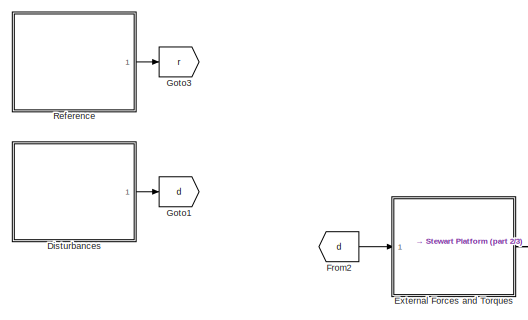
[diagram: root canvas - part 1/3, top center region]
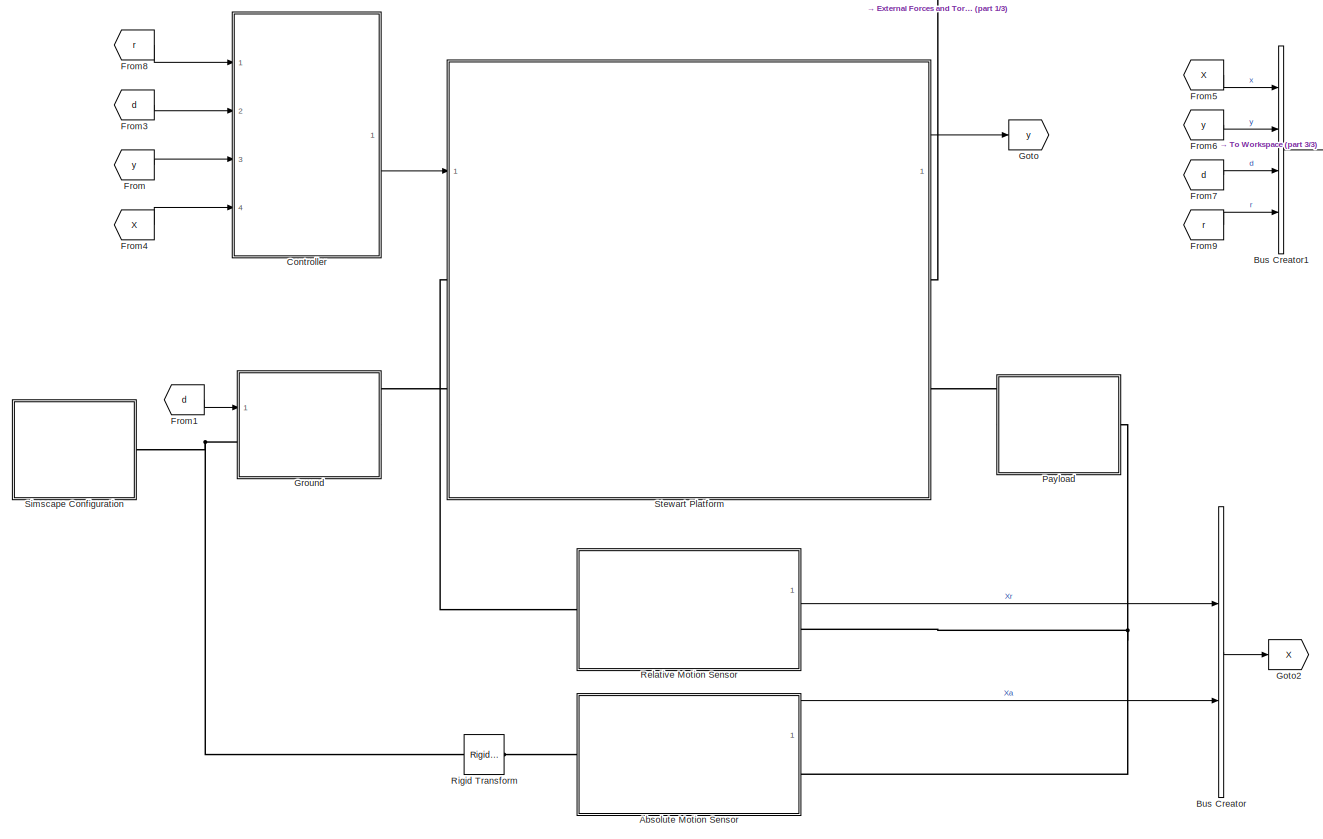
[diagram: root canvas - part 2/3, full width, middle band]
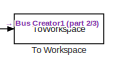
[diagram: root canvas - part 3/3, middle right region]
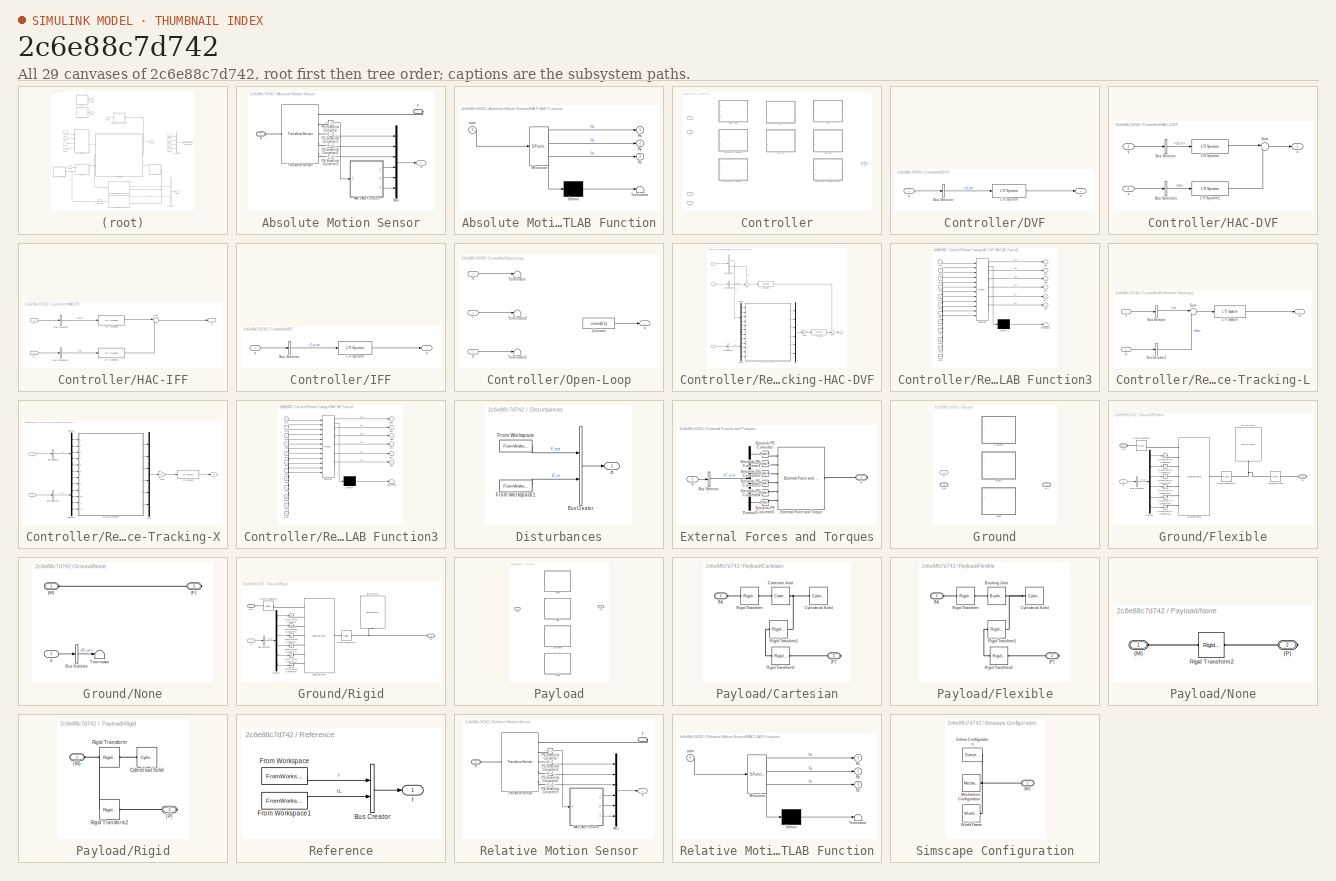
[diagram: thumbnail index - all 29 canvases of the model, root first then tree order]
MODEL slx_2c6e88c7d742
KIND model
CONFIG AbsTol = 1e-4
CONFIG EnableMultiTasking = off
CONFIG FixedStep = 1e-4
CONFIG MaxStep = 0.2
CONFIG MinStep = auto
CONFIG RelTol = 1e-4
CONFIG SampleTimeConstraint = Unconstrained
CONFIG Solver = ode45
CONFIG SolverName = ode45
CONFIG StartTime = 0.0
CONFIG StopTime = 0.1
BLOCK [SubSystem] Absolute Motion Sensor
  Ports = [0, 1, 0, 0, 0, 1, 1]
  RequestExecContextInheritance = off
BLOCK [PMIOPort] Absolute Motion Sensor/B
  Port = 2
  Side = Left
BLOCK [PMIOPort] Absolute Motion Sensor/F
  Side = Right
BLOCK [SubSystem] Absolute Motion Sensor/MATLAB Function
  ErrorFcn = Stateflow.Translate.translate
  PermitHierarchicalResolution = ExplicitOnly
  Ports = [1, 3]
  RequestExecContextInheritance = off
  SFBlockType = MATLAB Function
  TreatAsAtomicUnit = on
BLOCK [Demux] Absolute Motion Sensor/MATLAB Function/ Demux 
  Outputs = 1
  Ports = [1, 1]
BLOCK [S-Function] Absolute Motion Sensor/MATLAB Function/ SFunction 
  EnableBusSupport = on
  FunctionName = sf_sfun
  PortCounts = [1 4]
  Ports = [1, 4]
  SFcnIsStateOwnerBlock = off
  SFunctionDeploymentMode = off
  Tag = Stateflow S-Function 1
BLOCK [Terminator] Absolute Motion Sensor/MATLAB Function/ Terminator 
BLOCK [Outport] Absolute Motion Sensor/MATLAB Function/Rx
BLOCK [Outport] Absolute Motion Sensor/MATLAB Function/Ry
  Port = 2
BLOCK [Outport] Absolute Motion Sensor/MATLAB Function/Rz
  Port = 3
BLOCK [Inport] Absolute Motion Sensor/MATLAB Function/rotm
BLOCK [Mux] Absolute Motion Sensor/Mux
  DisplayOption = bar
  Inputs = 6
  Ports = [6, 1]
BLOCK [Reference] Absolute Motion Sensor/PS-Simulink Converter  REF=nesl_utility/PS-Simulink
Converter
  Ports = [0, 1, 0, 0, 0, 1]
  SourceBlock = nesl_utility/PS-Simulink\nConverter
  SourceProductBaseCode = SS
  SourceType = PS-Simulink\nConverter
BLOCK [Reference] Absolute Motion Sensor/PS-Simulink Converter1  REF=nesl_utility/PS-Simulink
Converter
  Ports = [0, 1, 0, 0, 0, 1]
  SourceBlock = nesl_utility/PS-Simulink\nConverter
  SourceProductBaseCode = SS
  SourceType = PS-Simulink\nConverter
BLOCK [Reference] Absolute Motion Sensor/PS-Simulink Converter2  REF=nesl_utility/PS-Simulink
Converter
  Ports = [0, 1, 0, 0, 0, 1]
  SourceBlock = nesl_utility/PS-Simulink\nConverter
  SourceProductBaseCode = SS
  SourceType = PS-Simulink\nConverter
BLOCK [Reference] Absolute Motion Sensor/PS-Simulink Converter3  REF=nesl_utility/PS-Simulink
Converter
  Ports = [0, 1, 0, 0, 0, 1]
  SourceBlock = nesl_utility/PS-Simulink\nConverter
  SourceProductBaseCode = SS
  SourceType = PS-Simulink\nConverter
BLOCK [Reference] Absolute Motion Sensor/Transform Sensor  REF=sm_lib/Frames and
Transforms/Transform
Sensor
  Ports = [0, 0, 0, 0, 0, 1, 5]
  SourceBlock = sm_lib/Frames and\nTransforms/Transform\nSensor
  SourceProductBaseCode = MS
  SourceType = Transform\nSensor
BLOCK [Outport] Absolute Motion Sensor/X
BLOCK [BusCreator] Bus Creator
  DisplayOption = bar
  InheritFromInputs = on
  Inputs = 2
  Ports = [2, 1]
BLOCK [BusCreator] Bus Creator1
  DisplayOption = bar
  InheritFromInputs = on
  Inputs = 4
  Ports = [4, 1]
BLOCK [SubSystem] Controller
  Ports = [4, 1]
  RequestExecContextInheritance = off
  Variant = on
  VariantControl = Variant1
BLOCK [SubSystem] Controller/DVF
  Ports = [1, 1]
  RequestExecContextInheritance = off
  VariantControl = controller.type == 2
BLOCK [BusSelector] Controller/DVF/Bus Selector
  OutputSignals = dLm
  Ports = [1, 1]
BLOCK [Reference] Controller/DVF/LTI System  REF=cstblocks/LTI System
  Ports = [1, 1]
  SourceBlock = cstblocks/LTI System
  SourceProductBaseCode = CT
  SourceType = LTI Block
BLOCK [Outport] Controller/DVF/u
BLOCK [Inport] Controller/DVF/y
BLOCK [SubSystem] Controller/HAC-DVF
  Ports = [2, 1]
  RequestExecContextInheritance = off
  VariantControl = controller.type == 4
BLOCK [BusSelector] Controller/HAC-DVF/Bus Selector
  OutputSignals = dLm
  Ports = [1, 1]
BLOCK [BusSelector] Controller/HAC-DVF/Bus Selector1
  OutputSignals = Xa
  Ports = [1, 1]
BLOCK [Reference] Controller/HAC-DVF/LTI System  REF=cstblocks/LTI System
  Ports = [1, 1]
  SourceBlock = cstblocks/LTI System
  SourceProductBaseCode = CT
  SourceType = LTI Block
BLOCK [Reference] Controller/HAC-DVF/LTI System1  REF=cstblocks/LTI System
  Ports = [1, 1]
  SourceBlock = cstblocks/LTI System
  SourceProductBaseCode = CT
  SourceType = LTI Block
BLOCK [Sum] Controller/HAC-DVF/Sum
  Inputs = |+-
  Ports = [2, 1]
BLOCK [Outport] Controller/HAC-DVF/u
BLOCK [Inport] Controller/HAC-DVF/x
  Port = 2
BLOCK [Inport] Controller/HAC-DVF/y
BLOCK [SubSystem] Controller/HAC-IFF
  Ports = [2, 1]
  RequestExecContextInheritance = off
  VariantControl = controller.type == 3
BLOCK [BusSelector] Controller/HAC-IFF/Bus Selector
  OutputSignals = Taum
  Ports = [1, 1]
BLOCK [BusSelector] Controller/HAC-IFF/Bus Selector1
  OutputSignals = Xa
  Ports = [1, 1]
BLOCK [Reference] Controller/HAC-IFF/LTI System  REF=cstblocks/LTI System
  Ports = [1, 1]
  SourceBlock = cstblocks/LTI System
  SourceProductBaseCode = CT
  SourceType = LTI Block
BLOCK [Reference] Controller/HAC-IFF/LTI System1  REF=cstblocks/LTI System
  Ports = [1, 1]
  SourceBlock = cstblocks/LTI System
  SourceProductBaseCode = CT
  SourceType = LTI Block
BLOCK [Sum] Controller/HAC-IFF/Sum
  Inputs = |+-
  Ports = [2, 1]
BLOCK [Outport] Controller/HAC-IFF/u
BLOCK [Inport] Controller/HAC-IFF/x
  Port = 2
BLOCK [Inport] Controller/HAC-IFF/y
BLOCK [SubSystem] Controller/IFF
  Ports = [1, 1]
  RequestExecContextInheritance = off
  VariantControl = controller.type == 1
BLOCK [BusSelector] Controller/IFF/Bus Selector
  OutputSignals = Taum
  Ports = [1, 1]
BLOCK [Reference] Controller/IFF/LTI System  REF=cstblocks/LTI System
  Ports = [1, 1]
  SourceBlock = cstblocks/LTI System
  SourceProductBaseCode = CT
  SourceType = LTI Block
BLOCK [Outport] Controller/IFF/u
BLOCK [Inport] Controller/IFF/y
BLOCK [SubSystem] Controller/Open-Loop
  Ports = [3, 1]
  RequestExecContextInheritance = off
  VariantControl = controller.type == 0
BLOCK [Constant] Controller/Open-Loop/Constant
  Value = zeros(6,1)
BLOCK [Terminator] Controller/Open-Loop/Terminator
BLOCK [Terminator] Controller/Open-Loop/Terminator1
BLOCK [Terminator] Controller/Open-Loop/Terminator2
BLOCK [Inport] Controller/Open-Loop/d
BLOCK [Inport] Controller/Open-Loop/r
  Port = 3
BLOCK [Outport] Controller/Open-Loop/u
BLOCK [Inport] Controller/Open-Loop/y
  Port = 2
BLOCK [SubSystem] Controller/Reference-Tracking-HAC-DVF
  Ports = [3, 1]
  RequestExecContextInheritance = off
  VariantControl = controller.type == 7
BLOCK [BusSelector] Controller/Reference-Tracking-HAC-DVF/Bus Selector
  OutputSignals = r,rL
  Ports = [1, 2]
BLOCK [BusSelector] Controller/Reference-Tracking-HAC-DVF/Bus Selector1
  OutputSignals = Xr
  Ports = [1, 1]
BLOCK [BusSelector] Controller/Reference-Tracking-HAC-DVF/Bus Selector2
  OutputSignals = dLm
  Ports = [1, 1]
BLOCK [Demux] Controller/Reference-Tracking-HAC-DVF/Demux
  Outputs = 6
  Ports = [1, 6]
BLOCK [Demux] Controller/Reference-Tracking-HAC-DVF/Demux1
  Outputs = 6
  Ports = [1, 6]
BLOCK [Gain] Controller/Reference-Tracking-HAC-DVF/Gain
BLOCK [Reference] Controller/Reference-Tracking-HAC-DVF/LTI System  REF=cstblocks/LTI System
  Ports = [1, 1]
  SourceBlock = cstblocks/LTI System
  SourceProductBaseCode = CT
  SourceType = LTI Block
BLOCK [Reference] Controller/Reference-Tracking-HAC-DVF/LTI System1  REF=cstblocks/LTI System
  Ports = [1, 1]
  SourceBlock = cstblocks/LTI System
  SourceProductBaseCode = CT
  SourceType = LTI Block
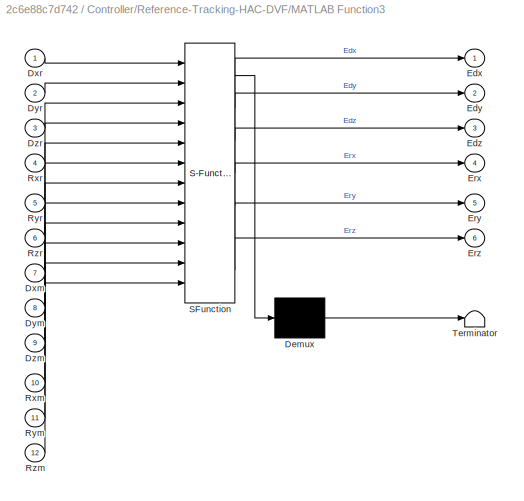
BLOCK [SubSystem] Controller/Reference-Tracking-HAC-DVF/MATLAB Function3
  ErrorFcn = Stateflow.Translate.translate
  PermitHierarchicalResolution = ExplicitOnly
  Ports = [12, 6]
  RequestExecContextInheritance = off
  SFBlockType = MATLAB Function
  TreatAsAtomicUnit = on
BLOCK [Demux] Controller/Reference-Tracking-HAC-DVF/MATLAB Function3/ Demux 
  Outputs = 1
  Ports = [1, 1]
BLOCK [S-Function] Controller/Reference-Tracking-HAC-DVF/MATLAB Function3/ SFunction 
  EnableBusSupport = on
  FunctionName = sf_sfun
  PortCounts = [12 7]
  Ports = [12, 7]
  SFcnIsStateOwnerBlock = off
  SFunctionDeploymentMode = off
  Tag = Stateflow S-Function 4
BLOCK [Terminator] Controller/Reference-Tracking-HAC-DVF/MATLAB Function3/ Terminator 
BLOCK [Inport] Controller/Reference-Tracking-HAC-DVF/MATLAB Function3/Dxm
  Port = 7
BLOCK [Inport] Controller/Reference-Tracking-HAC-DVF/MATLAB Function3/Dxr
BLOCK [Inport] Controller/Reference-Tracking-HAC-DVF/MATLAB Function3/Dym
  Port = 8
BLOCK [Inport] Controller/Reference-Tracking-HAC-DVF/MATLAB Function3/Dyr
  Port = 2
BLOCK [Inport] Controller/Reference-Tracking-HAC-DVF/MATLAB Function3/Dzm
  Port = 9
BLOCK [Inport] Controller/Reference-Tracking-HAC-DVF/MATLAB Function3/Dzr
  Port = 3
BLOCK [Outport] Controller/Reference-Tracking-HAC-DVF/MATLAB Function3/Edx
BLOCK [Outport] Controller/Reference-Tracking-HAC-DVF/MATLAB Function3/Edy
  Port = 2
BLOCK [Outport] Controller/Reference-Tracking-HAC-DVF/MATLAB Function3/Edz
  Port = 3
BLOCK [Outport] Controller/Reference-Tracking-HAC-DVF/MATLAB Function3/Erx
  Port = 4
BLOCK [Outport] Controller/Reference-Tracking-HAC-DVF/MATLAB Function3/Ery
  Port = 5
BLOCK [Outport] Controller/Reference-Tracking-HAC-DVF/MATLAB Function3/Erz
  Port = 6
BLOCK [Inport] Controller/Reference-Tracking-HAC-DVF/MATLAB Function3/Rxm
  Port = 10
BLOCK [Inport] Controller/Reference-Tracking-HAC-DVF/MATLAB Function3/Rxr
  Port = 4
BLOCK [Inport] Controller/Reference-Tracking-HAC-DVF/MATLAB Function3/Rym
  Port = 11
BLOCK [Inport] Controller/Reference-Tracking-HAC-DVF/MATLAB Function3/Ryr
  Port = 5
BLOCK [Inport] Controller/Reference-Tracking-HAC-DVF/MATLAB Function3/Rzm
  Port = 12
BLOCK [Inport] Controller/Reference-Tracking-HAC-DVF/MATLAB Function3/Rzr
  Port = 6
BLOCK [Mux] Controller/Reference-Tracking-HAC-DVF/Mux
  DisplayOption = bar
  Inputs = 6
  Ports = [6, 1]
BLOCK [Sum] Controller/Reference-Tracking-HAC-DVF/Sum
  Inputs = +-|
  Ports = [2, 1]
BLOCK [Sum] Controller/Reference-Tracking-HAC-DVF/Sum1
  Inputs = ++|
  Ports = [2, 1]
BLOCK [Inport] Controller/Reference-Tracking-HAC-DVF/r
  Port = 2
BLOCK [Outport] Controller/Reference-Tracking-HAC-DVF/u
BLOCK [Inport] Controller/Reference-Tracking-HAC-DVF/x
BLOCK [Inport] Controller/Reference-Tracking-HAC-DVF/y
  Port = 3
BLOCK [SubSystem] Controller/Reference-Tracking-L
  Ports = [2, 1]
  RequestExecContextInheritance = off
  VariantControl = controller.type == 5
BLOCK [BusSelector] Controller/Reference-Tracking-L/Bus Selector
  OutputSignals = rL
  Ports = [1, 1]
BLOCK [BusSelector] Controller/Reference-Tracking-L/Bus Selector1
  OutputSignals = dLm
  Ports = [1, 1]
BLOCK [Reference] Controller/Reference-Tracking-L/LTI System  REF=cstblocks/LTI System
  Ports = [1, 1]
  SourceBlock = cstblocks/LTI System
  SourceProductBaseCode = CT
  SourceType = LTI Block
BLOCK [Sum] Controller/Reference-Tracking-L/Sum
  Inputs = |+-
  Ports = [2, 1]
BLOCK [Inport] Controller/Reference-Tracking-L/r
  Port = 2
BLOCK [Outport] Controller/Reference-Tracking-L/u
BLOCK [Inport] Controller/Reference-Tracking-L/y
BLOCK [SubSystem] Controller/Reference-Tracking-X
  Ports = [2, 1]
  RequestExecContextInheritance = off
  VariantControl = controller.type == 6
BLOCK [BusSelector] Controller/Reference-Tracking-X/Bus Selector
  OutputSignals = r
  Ports = [1, 1]
BLOCK [BusSelector] Controller/Reference-Tracking-X/Bus Selector1
  OutputSignals = Xr
  Ports = [1, 1]
BLOCK [Demux] Controller/Reference-Tracking-X/Demux
  Outputs = 6
  Ports = [1, 6]
BLOCK [Demux] Controller/Reference-Tracking-X/Demux1
  Outputs = 6
  Ports = [1, 6]
BLOCK [Gain] Controller/Reference-Tracking-X/Gain
BLOCK [Reference] Controller/Reference-Tracking-X/LTI System  REF=cstblocks/LTI System
  Ports = [1, 1]
  SourceBlock = cstblocks/LTI System
  SourceProductBaseCode = CT
  SourceType = LTI Block
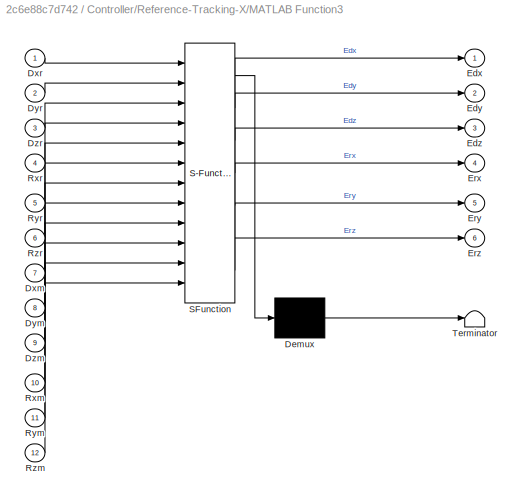
BLOCK [SubSystem] Controller/Reference-Tracking-X/MATLAB Function3
  ErrorFcn = Stateflow.Translate.translate
  PermitHierarchicalResolution = ExplicitOnly
  Ports = [12, 6]
  RequestExecContextInheritance = off
  SFBlockType = MATLAB Function
  TreatAsAtomicUnit = on
BLOCK [Demux] Controller/Reference-Tracking-X/MATLAB Function3/ Demux 
  Outputs = 1
  Ports = [1, 1]
BLOCK [S-Function] Controller/Reference-Tracking-X/MATLAB Function3/ SFunction 
  EnableBusSupport = on
  FunctionName = sf_sfun
  PortCounts = [12 7]
  Ports = [12, 7]
  SFcnIsStateOwnerBlock = off
  SFunctionDeploymentMode = off
  Tag = Stateflow S-Function 3
BLOCK [Terminator] Controller/Reference-Tracking-X/MATLAB Function3/ Terminator 
BLOCK [Inport] Controller/Reference-Tracking-X/MATLAB Function3/Dxm
  Port = 7
BLOCK [Inport] Controller/Reference-Tracking-X/MATLAB Function3/Dxr
BLOCK [Inport] Controller/Reference-Tracking-X/MATLAB Function3/Dym
  Port = 8
BLOCK [Inport] Controller/Reference-Tracking-X/MATLAB Function3/Dyr
  Port = 2
BLOCK [Inport] Controller/Reference-Tracking-X/MATLAB Function3/Dzm
  Port = 9
BLOCK [Inport] Controller/Reference-Tracking-X/MATLAB Function3/Dzr
  Port = 3
BLOCK [Outport] Controller/Reference-Tracking-X/MATLAB Function3/Edx
BLOCK [Outport] Controller/Reference-Tracking-X/MATLAB Function3/Edy
  Port = 2
BLOCK [Outport] Controller/Reference-Tracking-X/MATLAB Function3/Edz
  Port = 3
BLOCK [Outport] Controller/Reference-Tracking-X/MATLAB Function3/Erx
  Port = 4
BLOCK [Outport] Controller/Reference-Tracking-X/MATLAB Function3/Ery
  Port = 5
BLOCK [Outport] Controller/Reference-Tracking-X/MATLAB Function3/Erz
  Port = 6
BLOCK [Inport] Controller/Reference-Tracking-X/MATLAB Function3/Rxm
  Port = 10
BLOCK [Inport] Controller/Reference-Tracking-X/MATLAB Function3/Rxr
  Port = 4
BLOCK [Inport] Controller/Reference-Tracking-X/MATLAB Function3/Rym
  Port = 11
BLOCK [Inport] Controller/Reference-Tracking-X/MATLAB Function3/Ryr
  Port = 5
BLOCK [Inport] Controller/Reference-Tracking-X/MATLAB Function3/Rzm
  Port = 12
BLOCK [Inport] Controller/Reference-Tracking-X/MATLAB Function3/Rzr
  Port = 6
BLOCK [Mux] Controller/Reference-Tracking-X/Mux
  DisplayOption = bar
  Inputs = 6
  Ports = [6, 1]
BLOCK [Inport] Controller/Reference-Tracking-X/r
  Port = 2
BLOCK [Outport] Controller/Reference-Tracking-X/u
BLOCK [Inport] Controller/Reference-Tracking-X/x
BLOCK [Inport] Controller/d
  Port = 2
BLOCK [Inport] Controller/r
BLOCK [Outport] Controller/u
BLOCK [Inport] Controller/x
  Port = 4
BLOCK [Inport] Controller/y
  Port = 3
BLOCK [SubSystem] Disturbances
  Ports = [0, 1]
  RequestExecContextInheritance = off
  VariantControl = disturbances.type == 1
BLOCK [BusCreator] Disturbances/Bus Creator
  DisplayOption = bar
  InheritFromInputs = on
  Inputs = 2
  Ports = [2, 1]
BLOCK [FromWorkspace] Disturbances/From Workspace
  OutDataTypeStr = double
  OutputAfterFinalValue = Setting to zero
  VariableName = disturbances.Fd
BLOCK [FromWorkspace] Disturbances/From Workspace1
  OutDataTypeStr = double
  OutputAfterFinalValue = Setting to zero
  VariableName = disturbances.Dw
BLOCK [Outport] Disturbances/d
BLOCK [SubSystem] External Forces and Torques
  Ports = [1, 0, 0, 0, 0, 0, 1]
  RequestExecContextInheritance = off
BLOCK [BusSelector] External Forces and Torques/Bus Selector
  OutputSignals = F_ext
  Ports = [1, 1]
BLOCK [Demux] External Forces and Torques/Demux1
  Outputs = 6
  Ports = [1, 6]
BLOCK [Reference] External Forces and Torques/External Force and Torque  REF=sm_lib/Forces and
Torques/External Force
and Torque
  Ports = [0, 0, 0, 0, 0, 6, 1]
  SourceBlock = sm_lib/Forces and\nTorques/External Force\nand Torque
  SourceProductBaseCode = MS
  SourceType = External Force\nand Torque
BLOCK [PMIOPort] External Forces and Torques/F
  Side = Right
BLOCK [Reference] External Forces and Torques/Simulink-PS Converter  REF=nesl_utility/Simulink-PS
Converter
  Ports = [1, 0, 0, 0, 0, 0, 1]
  SourceBlock = nesl_utility/Simulink-PS\nConverter
  SourceProductBaseCode = SS
  SourceType = Simulink-PS\nConverter
BLOCK [Reference] External Forces and Torques/Simulink-PS Converter1  REF=nesl_utility/Simulink-PS
Converter
  Ports = [1, 0, 0, 0, 0, 0, 1]
  SourceBlock = nesl_utility/Simulink-PS\nConverter
  SourceProductBaseCode = SS
  SourceType = Simulink-PS\nConverter
BLOCK [Reference] External Forces and Torques/Simulink-PS Converter2  REF=nesl_utility/Simulink-PS
Converter
  Ports = [1, 0, 0, 0, 0, 0, 1]
  SourceBlock = nesl_utility/Simulink-PS\nConverter
  SourceProductBaseCode = SS
  SourceType = Simulink-PS\nConverter
BLOCK [Reference] External Forces and Torques/Simulink-PS Converter3  REF=nesl_utility/Simulink-PS
Converter
  Ports = [1, 0, 0, 0, 0, 0, 1]
  SourceBlock = nesl_utility/Simulink-PS\nConverter
  SourceProductBaseCode = SS
  SourceType = Simulink-PS\nConverter
BLOCK [Reference] External Forces and Torques/Simulink-PS Converter4  REF=nesl_utility/Simulink-PS
Converter
  Ports = [1, 0, 0, 0, 0, 0, 1]
  SourceBlock = nesl_utility/Simulink-PS\nConverter
  SourceProductBaseCode = SS
  SourceType = Simulink-PS\nConverter
BLOCK [Reference] External Forces and Torques/Simulink-PS Converter5  REF=nesl_utility/Simulink-PS
Converter
  Ports = [1, 0, 0, 0, 0, 0, 1]
  SourceBlock = nesl_utility/Simulink-PS\nConverter
  SourceProductBaseCode = SS
  SourceType = Simulink-PS\nConverter
BLOCK [Inport] External Forces and Torques/d
BLOCK [From] From
  GotoTag = y
BLOCK [From] From1
  GotoTag = d
BLOCK [From] From2
  GotoTag = d
BLOCK [From] From3
  GotoTag = d
BLOCK [From] From4
  GotoTag = X
BLOCK [From] From5
  GotoTag = X
BLOCK [From] From6
  GotoTag = y
BLOCK [From] From7
  GotoTag = d
BLOCK [From] From8
  GotoTag = r
BLOCK [From] From9
  GotoTag = r
BLOCK [Goto] Goto
  GotoTag = y
BLOCK [Goto] Goto1
  GotoTag = d
BLOCK [Goto] Goto2
  GotoTag = X
BLOCK [Goto] Goto3
  GotoTag = r
BLOCK [SubSystem] Ground
  Ports = [1, 0, 0, 0, 0, 1, 1]
  RequestExecContextInheritance = off
  Variant = on
  VariantControl = Variant1
BLOCK [SubSystem] Ground/Flexible
  Ports = [1, 0, 0, 0, 0, 1, 1]
  RequestExecContextInheritance = off
  VariantControl = ground.type == 3
BLOCK [Reference] Ground/Flexible/Brick Solid  REF=sm_lib/Body Elements/Brick Solid
  NameLocation = right
  Ports = [0, 0, 0, 0, 0, 1]
  SourceBlock = sm_lib/Body Elements/Brick Solid
  SourceProductBaseCode = MS
  SourceType = Brick Solid
BLOCK [BusSelector] Ground/Flexible/Bus Selector
  OutputSignals = D_w
  Ports = [1, 1]
BLOCK [Reference] Ground/Flexible/Bushing Joint  REF=sm_lib/Joints/Bushing Joint
  Ports = [0, 0, 0, 0, 0, 7, 1]
  SourceBlock = sm_lib/Joints/Bushing Joint
  SourceProductBaseCode = MS
  SourceType = Bushing Joint
BLOCK [Reference] Ground/Flexible/Cartesian Joint  REF=sm_lib/Joints/Cartesian
Joint
  Ports = [0, 0, 0, 0, 0, 1, 1]
  SourceBlock = sm_lib/Joints/Cartesian\nJoint
  SourceProductBaseCode = MS
  SourceType = Cartesian\nJoint
BLOCK [Demux] Ground/Flexible/Demux
  Outputs = 6
  Ports = [1, 6]
BLOCK [Reference] Ground/Flexible/Rigid Transform  REF=sm_lib/Frames and
Transforms/Rigid
Transform
  Ports = [0, 0, 0, 0, 0, 1, 1]
  SourceBlock = sm_lib/Frames and\nTransforms/Rigid\nTransform
  SourceProductBaseCode = MS
  SourceType = Rigid\nTransform
BLOCK [Reference] Ground/Flexible/Rigid Transform1  REF=sm_lib/Frames and
Transforms/Rigid
Transform
  Ports = [0, 0, 0, 0, 0, 1, 1]
  SourceBlock = sm_lib/Frames and\nTransforms/Rigid\nTransform
  SourceProductBaseCode = MS
  SourceType = Rigid\nTransform
BLOCK [Reference] Ground/Flexible/Simulink-PS Converter  REF=nesl_utility/Simulink-PS
Converter
  Ports = [1, 0, 0, 0, 0, 0, 1]
  SourceBlock = nesl_utility/Simulink-PS\nConverter
  SourceProductBaseCode = SS
  SourceType = Simulink-PS\nConverter
BLOCK [Reference] Ground/Flexible/Simulink-PS Converter1  REF=nesl_utility/Simulink-PS
Converter
  Ports = [1, 0, 0, 0, 0, 0, 1]
  SourceBlock = nesl_utility/Simulink-PS\nConverter
  SourceProductBaseCode = SS
  SourceType = Simulink-PS\nConverter
BLOCK [Reference] Ground/Flexible/Simulink-PS Converter2  REF=nesl_utility/Simulink-PS
Converter
  Ports = [1, 0, 0, 0, 0, 0, 1]
  SourceBlock = nesl_utility/Simulink-PS\nConverter
  SourceProductBaseCode = SS
  SourceType = Simulink-PS\nConverter
BLOCK [Reference] Ground/Flexible/Simulink-PS Converter3  REF=nesl_utility/Simulink-PS
Converter
  Ports = [1, 0, 0, 0, 0, 0, 1]
  SourceBlock = nesl_utility/Simulink-PS\nConverter
  SourceProductBaseCode = SS
  SourceType = Simulink-PS\nConverter
BLOCK [Reference] Ground/Flexible/Simulink-PS Converter4  REF=nesl_utility/Simulink-PS
Converter
  Ports = [1, 0, 0, 0, 0, 0, 1]
  SourceBlock = nesl_utility/Simulink-PS\nConverter
  SourceProductBaseCode = SS
  SourceType = Simulink-PS\nConverter
BLOCK [Reference] Ground/Flexible/Simulink-PS Converter5  REF=nesl_utility/Simulink-PS
Converter
  Ports = [1, 0, 0, 0, 0, 0, 1]
  SourceBlock = nesl_utility/Simulink-PS\nConverter
  SourceProductBaseCode = SS
  SourceType = Simulink-PS\nConverter
BLOCK [Inport] Ground/Flexible/d
BLOCK [PMIOPort] Ground/Flexible/{F}
  Port = 2
  Side = Right
BLOCK [PMIOPort] Ground/Flexible/{W}
  Side = Left
BLOCK [SubSystem] Ground/None
  Ports = [1, 0, 0, 0, 0, 1, 1]
  RequestExecContextInheritance = off
  VariantControl = ground.type == 1
BLOCK [BusSelector] Ground/None/Bus Selector
  OutputSignals = D_w
  Ports = [1, 1]
BLOCK [Terminator] Ground/None/Terminator
BLOCK [Inport] Ground/None/d
BLOCK [PMIOPort] Ground/None/{F}
  Port = 2
  Side = Right
BLOCK [PMIOPort] Ground/None/{W}
  Side = Left
BLOCK [SubSystem] Ground/Rigid
  Ports = [1, 0, 0, 0, 0, 1, 1]
  RequestExecContextInheritance = off
  VariantControl = ground.type == 2
BLOCK [Reference] Ground/Rigid/Brick Solid  REF=sm_lib/Body Elements/Brick Solid
  NameLocation = right
  Ports = [0, 0, 0, 0, 0, 1]
  SourceBlock = sm_lib/Body Elements/Brick Solid
  SourceProductBaseCode = MS
  SourceType = Brick Solid
BLOCK [BusSelector] Ground/Rigid/Bus Selector
  OutputSignals = D_w
  Ports = [1, 1]
BLOCK [Reference] Ground/Rigid/Bushing Joint  REF=sm_lib/Joints/Bushing Joint
  Ports = [0, 0, 0, 0, 0, 7, 1]
  SourceBlock = sm_lib/Joints/Bushing Joint
  SourceProductBaseCode = MS
  SourceType = Bushing Joint
BLOCK [Demux] Ground/Rigid/Demux
  Outputs = 6
  Ports = [1, 6]
BLOCK [Reference] Ground/Rigid/Rigid Transform  REF=sm_lib/Frames and
Transforms/Rigid
Transform
  Ports = [0, 0, 0, 0, 0, 1, 1]
  SourceBlock = sm_lib/Frames and\nTransforms/Rigid\nTransform
  SourceProductBaseCode = MS
  SourceType = Rigid\nTransform
BLOCK [Reference] Ground/Rigid/Rigid Transform1  REF=sm_lib/Frames and
Transforms/Rigid
Transform
  Ports = [0, 0, 0, 0, 0, 1, 1]
  SourceBlock = sm_lib/Frames and\nTransforms/Rigid\nTransform
  SourceProductBaseCode = MS
  SourceType = Rigid\nTransform
BLOCK [Reference] Ground/Rigid/Simulink-PS Converter  REF=nesl_utility/Simulink-PS
Converter
  Ports = [1, 0, 0, 0, 0, 0, 1]
  SourceBlock = nesl_utility/Simulink-PS\nConverter
  SourceProductBaseCode = SS
  SourceType = Simulink-PS\nConverter
BLOCK [Reference] Ground/Rigid/Simulink-PS Converter1  REF=nesl_utility/Simulink-PS
Converter
  Ports = [1, 0, 0, 0, 0, 0, 1]
  SourceBlock = nesl_utility/Simulink-PS\nConverter
  SourceProductBaseCode = SS
  SourceType = Simulink-PS\nConverter
BLOCK [Reference] Ground/Rigid/Simulink-PS Converter2  REF=nesl_utility/Simulink-PS
Converter
  Ports = [1, 0, 0, 0, 0, 0, 1]
  SourceBlock = nesl_utility/Simulink-PS\nConverter
  SourceProductBaseCode = SS
  SourceType = Simulink-PS\nConverter
BLOCK [Reference] Ground/Rigid/Simulink-PS Converter3  REF=nesl_utility/Simulink-PS
Converter
  Ports = [1, 0, 0, 0, 0, 0, 1]
  SourceBlock = nesl_utility/Simulink-PS\nConverter
  SourceProductBaseCode = SS
  SourceType = Simulink-PS\nConverter
BLOCK [Reference] Ground/Rigid/Simulink-PS Converter4  REF=nesl_utility/Simulink-PS
Converter
  Ports = [1, 0, 0, 0, 0, 0, 1]
  SourceBlock = nesl_utility/Simulink-PS\nConverter
  SourceProductBaseCode = SS
  SourceType = Simulink-PS\nConverter
BLOCK [Reference] Ground/Rigid/Simulink-PS Converter5  REF=nesl_utility/Simulink-PS
Converter
  Ports = [1, 0, 0, 0, 0, 0, 1]
  SourceBlock = nesl_utility/Simulink-PS\nConverter
  SourceProductBaseCode = SS
  SourceType = Simulink-PS\nConverter
BLOCK [Inport] Ground/Rigid/d
BLOCK [PMIOPort] Ground/Rigid/{F}
  Port = 2
  Side = Right
BLOCK [PMIOPort] Ground/Rigid/{W}
  Side = Left
BLOCK [Inport] Ground/d
BLOCK [PMIOPort] Ground/{F}
  Port = 2
  Side = Right
BLOCK [PMIOPort] Ground/{W}
  Side = Left
BLOCK [SubSystem] Payload
  Ports = [0, 0, 0, 0, 0, 1, 1]
  RequestExecContextInheritance = off
  Variant = on
  VariantControl = Variant1
BLOCK [SubSystem] Payload/Cartesian
  Ports = [0, 0, 0, 0, 0, 1, 1]
  RequestExecContextInheritance = off
  VariantControl = payload.type == 4
BLOCK [Reference] Payload/Cartesian/Cartesian Joint  REF=sm_lib/Joints/Cartesian
Joint
  Ports = [0, 0, 0, 0, 0, 1, 1]
  SourceBlock = sm_lib/Joints/Cartesian\nJoint
  SourceProductBaseCode = MS
  SourceType = Cartesian\nJoint
BLOCK [Reference] Payload/Cartesian/Cylindrical Solid  REF=sm_lib/Body Elements/Cylindrical Solid
  Ports = [0, 0, 0, 0, 0, 0, 1]
  SourceBlock = sm_lib/Body Elements/Cylindrical Solid
  SourceProductBaseCode = MS
  SourceType = Cylindrical Solid
BLOCK [Reference] Payload/Cartesian/Rigid Transform  REF=sm_lib/Frames and
Transforms/Rigid
Transform
  Ports = [0, 0, 0, 0, 0, 1, 1]
  SourceBlock = sm_lib/Frames and\nTransforms/Rigid\nTransform
  SourceProductBaseCode = MS
  SourceType = Rigid\nTransform
BLOCK [Reference] Payload/Cartesian/Rigid Transform1  REF=sm_lib/Frames and
Transforms/Rigid
Transform
  Ports = [0, 0, 0, 0, 0, 1, 1]
  SourceBlock = sm_lib/Frames and\nTransforms/Rigid\nTransform
  SourceProductBaseCode = MS
  SourceType = Rigid\nTransform
BLOCK [Reference] Payload/Cartesian/Rigid Transform2  REF=sm_lib/Frames and
Transforms/Rigid
Transform
  Ports = [0, 0, 0, 0, 0, 1, 1]
  SourceBlock = sm_lib/Frames and\nTransforms/Rigid\nTransform
  SourceProductBaseCode = MS
  SourceType = Rigid\nTransform
BLOCK [PMIOPort] Payload/Cartesian/{M}
  Side = Left
BLOCK [PMIOPort] Payload/Cartesian/{P}
  Port = 2
  Side = Right
BLOCK [SubSystem] Payload/Flexible
  Ports = [0, 0, 0, 0, 0, 1, 1]
  RequestExecContextInheritance = off
  VariantControl = payload.type == 3
BLOCK [Reference] Payload/Flexible/Bushing Joint  REF=sm_lib/Joints/Bushing Joint
  Ports = [0, 0, 0, 0, 0, 1, 1]
  SourceBlock = sm_lib/Joints/Bushing Joint
  SourceProductBaseCode = MS
  SourceType = Bushing Joint
BLOCK [Reference] Payload/Flexible/Cylindrical Solid  REF=sm_lib/Body Elements/Cylindrical Solid
  Ports = [0, 0, 0, 0, 0, 0, 1]
  SourceBlock = sm_lib/Body Elements/Cylindrical Solid
  SourceProductBaseCode = MS
  SourceType = Cylindrical Solid
BLOCK [Reference] Payload/Flexible/Rigid Transform  REF=sm_lib/Frames and
Transforms/Rigid
Transform
  Ports = [0, 0, 0, 0, 0, 1, 1]
  SourceBlock = sm_lib/Frames and\nTransforms/Rigid\nTransform
  SourceProductBaseCode = MS
  SourceType = Rigid\nTransform
BLOCK [Reference] Payload/Flexible/Rigid Transform1  REF=sm_lib/Frames and
Transforms/Rigid
Transform
  Ports = [0, 0, 0, 0, 0, 1, 1]
  SourceBlock = sm_lib/Frames and\nTransforms/Rigid\nTransform
  SourceProductBaseCode = MS
  SourceType = Rigid\nTransform
BLOCK [Reference] Payload/Flexible/Rigid Transform2  REF=sm_lib/Frames and
Transforms/Rigid
Transform
  Ports = [0, 0, 0, 0, 0, 1, 1]
  SourceBlock = sm_lib/Frames and\nTransforms/Rigid\nTransform
  SourceProductBaseCode = MS
  SourceType = Rigid\nTransform
BLOCK [PMIOPort] Payload/Flexible/{M}
  Side = Left
BLOCK [PMIOPort] Payload/Flexible/{P}
  Port = 2
  Side = Right
BLOCK [SubSystem] Payload/None
  Ports = [0, 0, 0, 0, 0, 1, 1]
  RequestExecContextInheritance = off
  VariantControl = payload.type == 1
BLOCK [Reference] Payload/None/Rigid Transform2  REF=sm_lib/Frames and
Transforms/Rigid
Transform
  Ports = [0, 0, 0, 0, 0, 1, 1]
  SourceBlock = sm_lib/Frames and\nTransforms/Rigid\nTransform
  SourceProductBaseCode = MS
  SourceType = Rigid\nTransform
BLOCK [PMIOPort] Payload/None/{M}
  Side = Left
BLOCK [PMIOPort] Payload/None/{P}
  Port = 2
  Side = Right
BLOCK [SubSystem] Payload/Rigid
  Ports = [0, 0, 0, 0, 0, 1, 1]
  RequestExecContextInheritance = off
  VariantControl = payload.type == 2
BLOCK [Reference] Payload/Rigid/Cylindrical Solid  REF=sm_lib/Body Elements/Cylindrical Solid
  Ports = [0, 0, 0, 0, 0, 0, 1]
  SourceBlock = sm_lib/Body Elements/Cylindrical Solid
  SourceProductBaseCode = MS
  SourceType = Cylindrical Solid
BLOCK [Reference] Payload/Rigid/Rigid Transform  REF=sm_lib/Frames and
Transforms/Rigid
Transform
  Ports = [0, 0, 0, 0, 0, 1, 1]
  SourceBlock = sm_lib/Frames and\nTransforms/Rigid\nTransform
  SourceProductBaseCode = MS
  SourceType = Rigid\nTransform
BLOCK [Reference] Payload/Rigid/Rigid Transform2  REF=sm_lib/Frames and
Transforms/Rigid
Transform
  Ports = [0, 0, 0, 0, 0, 1, 1]
  SourceBlock = sm_lib/Frames and\nTransforms/Rigid\nTransform
  SourceProductBaseCode = MS
  SourceType = Rigid\nTransform
BLOCK [PMIOPort] Payload/Rigid/{M}
  Side = Left
BLOCK [PMIOPort] Payload/Rigid/{P}
  Port = 2
  Side = Right
BLOCK [PMIOPort] Payload/{M}
  Side = Left
BLOCK [PMIOPort] Payload/{P}
  Port = 2
  Side = Right
BLOCK [SubSystem] Reference
  Ports = [0, 1]
  RequestExecContextInheritance = off
  VariantControl = Variant1
BLOCK [BusCreator] Reference/Bus Creator
  DisplayOption = bar
  InheritFromInputs = on
  Inputs = 2
  Ports = [2, 1]
BLOCK [FromWorkspace] Reference/From Workspace
  OutDataTypeStr = double
  OutputAfterFinalValue = Setting to zero
  VariableName = references.r
BLOCK [FromWorkspace] Reference/From Workspace1
  OutDataTypeStr = double
  OutputAfterFinalValue = Setting to zero
  VariableName = references.rL
BLOCK [Outport] Reference/r
BLOCK [SubSystem] Relative Motion Sensor
  Ports = [0, 1, 0, 0, 0, 1, 1]
  RequestExecContextInheritance = off
BLOCK [PMIOPort] Relative Motion Sensor/B
  Port = 2
  Side = Left
BLOCK [PMIOPort] Relative Motion Sensor/F
  Side = Right
BLOCK [SubSystem] Relative Motion Sensor/MATLAB Function
  ErrorFcn = Stateflow.Translate.translate
  PermitHierarchicalResolution = ExplicitOnly
  Ports = [1, 3]
  RequestExecContextInheritance = off
  SFBlockType = MATLAB Function
  TreatAsAtomicUnit = on
BLOCK [Demux] Relative Motion Sensor/MATLAB Function/ Demux 
  Outputs = 1
  Ports = [1, 1]
BLOCK [S-Function] Relative Motion Sensor/MATLAB Function/ SFunction 
  EnableBusSupport = on
  FunctionName = sf_sfun
  PortCounts = [1 4]
  Ports = [1, 4]
  SFcnIsStateOwnerBlock = off
  SFunctionDeploymentMode = off
  Tag = Stateflow S-Function 2
BLOCK [Terminator] Relative Motion Sensor/MATLAB Function/ Terminator 
BLOCK [Outport] Relative Motion Sensor/MATLAB Function/Rx
BLOCK [Outport] Relative Motion Sensor/MATLAB Function/Ry
  Port = 2
BLOCK [Outport] Relative Motion Sensor/MATLAB Function/Rz
  Port = 3
BLOCK [Inport] Relative Motion Sensor/MATLAB Function/rotm
BLOCK [Mux] Relative Motion Sensor/Mux
  DisplayOption = bar
  Inputs = 6
  Ports = [6, 1]
BLOCK [Reference] Relative Motion Sensor/PS-Simulink Converter  REF=nesl_utility/PS-Simulink
Converter
  Ports = [0, 1, 0, 0, 0, 1]
  SourceBlock = nesl_utility/PS-Simulink\nConverter
  SourceProductBaseCode = SS
  SourceType = PS-Simulink\nConverter
BLOCK [Reference] Relative Motion Sensor/PS-Simulink Converter1  REF=nesl_utility/PS-Simulink
Converter
  Ports = [0, 1, 0, 0, 0, 1]
  SourceBlock = nesl_utility/PS-Simulink\nConverter
  SourceProductBaseCode = SS
  SourceType = PS-Simulink\nConverter
BLOCK [Reference] Relative Motion Sensor/PS-Simulink Converter2  REF=nesl_utility/PS-Simulink
Converter
  Ports = [0, 1, 0, 0, 0, 1]
  SourceBlock = nesl_utility/PS-Simulink\nConverter
  SourceProductBaseCode = SS
  SourceType = PS-Simulink\nConverter
BLOCK [Reference] Relative Motion Sensor/PS-Simulink Converter3  REF=nesl_utility/PS-Simulink
Converter
  Ports = [0, 1, 0, 0, 0, 1]
  SourceBlock = nesl_utility/PS-Simulink\nConverter
  SourceProductBaseCode = SS
  SourceType = PS-Simulink\nConverter
BLOCK [Reference] Relative Motion Sensor/Transform Sensor  REF=sm_lib/Frames and
Transforms/Transform
Sensor
  Ports = [0, 0, 0, 0, 0, 1, 5]
  SourceBlock = sm_lib/Frames and\nTransforms/Transform\nSensor
  SourceProductBaseCode = MS
  SourceType = Transform\nSensor
BLOCK [Outport] Relative Motion Sensor/X
BLOCK [Reference] Rigid Transform  REF=sm_lib/Frames and
Transforms/Rigid
Transform
  Ports = [0, 0, 0, 0, 0, 1, 1]
  SourceBlock = sm_lib/Frames and\nTransforms/Rigid\nTransform
  SourceProductBaseCode = MS
  SourceType = Rigid\nTransform
BLOCK [SubSystem] Simscape Configuration
  Ports = [0, 0, 0, 0, 0, 0, 1]
  RequestExecContextInheritance = off
BLOCK [Reference] Simscape Configuration/Mechanism Configuration  REF=sm_lib/Utilities/Mechanism
Configuration
  Ports = [0, 0, 0, 0, 0, 0, 1]
  SourceBlock = sm_lib/Utilities/Mechanism\nConfiguration
  SourceProductBaseCode = MS
  SourceType = Mechanism\nConfiguration
BLOCK [Reference] Simscape Configuration/Solver Configuration  REF=nesl_utility/Solver
Configuration
  Ports = [0, 0, 0, 0, 0, 0, 1]
  SourceBlock = nesl_utility/Solver\nConfiguration
  SourceProductBaseCode = SS
  SourceType = Solver\nConfiguration
BLOCK [Reference] Simscape Configuration/World Frame  REF=sm_lib/Frames and
Transforms/World Frame
  Ports = [0, 0, 0, 0, 0, 0, 1]
  SourceBlock = sm_lib/Frames and\nTransforms/World Frame
  SourceProductBaseCode = MS
  SourceType = World Frame
BLOCK [PMIOPort] Simscape Configuration/{W}
  Side = Right
BLOCK [SubSystem] Stewart Platform
  Ports = [1, 1, 0, 0, 0, 2, 2]
  ReferencedSubsystem = Stewart_Platform
  RequestExecContextInheritance = off
BLOCK [ToWorkspace] To Workspace
  FixptAsFi = on
  MaxDataPoints = inf
  Ports = [1]
  SampleTime = -1
  SaveFormat = Timeseries
  VariableName = simout
LINE Absolute Motion Sensor/MATLAB Function:1 -> Absolute Motion Sensor/Mux:4
LINE Absolute Motion Sensor/MATLAB Function:2 -> Absolute Motion Sensor/Mux:5
LINE Absolute Motion Sensor/MATLAB Function:3 -> Absolute Motion Sensor/Mux:6
LINE Absolute Motion Sensor/Mux:1 -> Absolute Motion Sensor/X:1
LINE Absolute Motion Sensor/PS-Simulink Converter1:1 -> Absolute Motion Sensor/Mux:1
LINE Absolute Motion Sensor/PS-Simulink Converter2:1 -> Absolute Motion Sensor/Mux:2
LINE Absolute Motion Sensor/PS-Simulink Converter3:1 -> Absolute Motion Sensor/Mux:3
LINE Absolute Motion Sensor/PS-Simulink Converter:1 -> Absolute Motion Sensor/MATLAB Function:1
LINE Absolute Motion Sensor:1 -> Bus Creator:2
LINE Bus Creator1:1 -> To Workspace:1
LINE Bus Creator:1 -> Goto2:1
LINE Controller/DVF/Bus Selector:1 -> Controller/DVF/LTI System:1
LINE Controller/DVF/LTI System:1 -> Controller/DVF/u:1
LINE Controller/DVF/y:1 -> Controller/DVF/Bus Selector:1
LINE Controller/HAC-DVF/Bus Selector1:1 -> Controller/HAC-DVF/LTI System1:1
LINE Controller/HAC-DVF/Bus Selector:1 -> Controller/HAC-DVF/LTI System:1
LINE Controller/HAC-DVF/LTI System1:1 -> Controller/HAC-DVF/Sum:2
LINE Controller/HAC-DVF/LTI System:1 -> Controller/HAC-DVF/Sum:1
LINE Controller/HAC-DVF/Sum:1 -> Controller/HAC-DVF/u:1
LINE Controller/HAC-DVF/x:1 -> Controller/HAC-DVF/Bus Selector1:1
LINE Controller/HAC-DVF/y:1 -> Controller/HAC-DVF/Bus Selector:1
LINE Controller/HAC-IFF/Bus Selector1:1 -> Controller/HAC-IFF/LTI System1:1
LINE Controller/HAC-IFF/Bus Selector:1 -> Controller/HAC-IFF/LTI System:1
LINE Controller/HAC-IFF/LTI System1:1 -> Controller/HAC-IFF/Sum:2
LINE Controller/HAC-IFF/LTI System:1 -> Controller/HAC-IFF/Sum:1
LINE Controller/HAC-IFF/Sum:1 -> Controller/HAC-IFF/u:1
LINE Controller/HAC-IFF/x:1 -> Controller/HAC-IFF/Bus Selector1:1
LINE Controller/HAC-IFF/y:1 -> Controller/HAC-IFF/Bus Selector:1
LINE Controller/IFF/Bus Selector:1 -> Controller/IFF/LTI System:1
LINE Controller/IFF/LTI System:1 -> Controller/IFF/u:1
LINE Controller/IFF/y:1 -> Controller/IFF/Bus Selector:1
LINE Controller/Open-Loop/Constant:1 -> Controller/Open-Loop/u:1
LINE Controller/Open-Loop/d:1 -> Controller/Open-Loop/Terminator:1
LINE Controller/Open-Loop/r:1 -> Controller/Open-Loop/Terminator2:1
LINE Controller/Open-Loop/y:1 -> Controller/Open-Loop/Terminator1:1
LINE Controller/Reference-Tracking-HAC-DVF/Bus Selector1:1 -> Controller/Reference-Tracking-HAC-DVF/Demux1:1
LINE Controller/Reference-Tracking-HAC-DVF/Bus Selector2:1 -> Controller/Reference-Tracking-HAC-DVF/Sum:2
LINE Controller/Reference-Tracking-HAC-DVF/Bus Selector:1 -> Controller/Reference-Tracking-HAC-DVF/Demux:1
LINE Controller/Reference-Tracking-HAC-DVF/Bus Selector:2 -> Controller/Reference-Tracking-HAC-DVF/Sum:1
LINE Controller/Reference-Tracking-HAC-DVF/Demux1:1 -> Controller/Reference-Tracking-HAC-DVF/MATLAB Function3:7
LINE Controller/Reference-Tracking-HAC-DVF/Demux1:2 -> Controller/Reference-Tracking-HAC-DVF/MATLAB Function3:8
LINE Controller/Reference-Tracking-HAC-DVF/Demux1:3 -> Controller/Reference-Tracking-HAC-DVF/MATLAB Function3:9
LINE Controller/Reference-Tracking-HAC-DVF/Demux1:4 -> Controller/Reference-Tracking-HAC-DVF/MATLAB Function3:10
LINE Controller/Reference-Tracking-HAC-DVF/Demux1:5 -> Controller/Reference-Tracking-HAC-DVF/MATLAB Function3:11
LINE Controller/Reference-Tracking-HAC-DVF/Demux1:6 -> Controller/Reference-Tracking-HAC-DVF/MATLAB Function3:12
LINE Controller/Reference-Tracking-HAC-DVF/Demux:1 -> Controller/Reference-Tracking-HAC-DVF/MATLAB Function3:1
LINE Controller/Reference-Tracking-HAC-DVF/Demux:2 -> Controller/Reference-Tracking-HAC-DVF/MATLAB Function3:2
LINE Controller/Reference-Tracking-HAC-DVF/Demux:3 -> Controller/Reference-Tracking-HAC-DVF/MATLAB Function3:3
LINE Controller/Reference-Tracking-HAC-DVF/Demux:4 -> Controller/Reference-Tracking-HAC-DVF/MATLAB Function3:4
LINE Controller/Reference-Tracking-HAC-DVF/Demux:5 -> Controller/Reference-Tracking-HAC-DVF/MATLAB Function3:5
LINE Controller/Reference-Tracking-HAC-DVF/Demux:6 -> Controller/Reference-Tracking-HAC-DVF/MATLAB Function3:6
LINE Controller/Reference-Tracking-HAC-DVF/Gain:1 -> Controller/Reference-Tracking-HAC-DVF/LTI System1:1
LINE Controller/Reference-Tracking-HAC-DVF/LTI System1:1 -> Controller/Reference-Tracking-HAC-DVF/Sum1:2
LINE Controller/Reference-Tracking-HAC-DVF/LTI System:1 -> Controller/Reference-Tracking-HAC-DVF/Sum1:1
LINE Controller/Reference-Tracking-HAC-DVF/MATLAB Function3:1 -> Controller/Reference-Tracking-HAC-DVF/Mux:1
LINE Controller/Reference-Tracking-HAC-DVF/MATLAB Function3:2 -> Controller/Reference-Tracking-HAC-DVF/Mux:2
LINE Controller/Reference-Tracking-HAC-DVF/MATLAB Function3:3 -> Controller/Reference-Tracking-HAC-DVF/Mux:3
LINE Controller/Reference-Tracking-HAC-DVF/MATLAB Function3:4 -> Controller/Reference-Tracking-HAC-DVF/Mux:4
LINE Controller/Reference-Tracking-HAC-DVF/MATLAB Function3:5 -> Controller/Reference-Tracking-HAC-DVF/Mux:5
LINE Controller/Reference-Tracking-HAC-DVF/MATLAB Function3:6 -> Controller/Reference-Tracking-HAC-DVF/Mux:6
LINE Controller/Reference-Tracking-HAC-DVF/Mux:1 -> Controller/Reference-Tracking-HAC-DVF/Gain:1
LINE Controller/Reference-Tracking-HAC-DVF/Sum1:1 -> Controller/Reference-Tracking-HAC-DVF/u:1
LINE Controller/Reference-Tracking-HAC-DVF/Sum:1 -> Controller/Reference-Tracking-HAC-DVF/LTI System:1
LINE Controller/Reference-Tracking-HAC-DVF/r:1 -> Controller/Reference-Tracking-HAC-DVF/Bus Selector:1
LINE Controller/Reference-Tracking-HAC-DVF/x:1 -> Controller/Reference-Tracking-HAC-DVF/Bus Selector1:1
LINE Controller/Reference-Tracking-HAC-DVF/y:1 -> Controller/Reference-Tracking-HAC-DVF/Bus Selector2:1
LINE Controller/Reference-Tracking-L/Bus Selector1:1 -> Controller/Reference-Tracking-L/Sum:2
LINE Controller/Reference-Tracking-L/Bus Selector:1 -> Controller/Reference-Tracking-L/Sum:1
LINE Controller/Reference-Tracking-L/LTI System:1 -> Controller/Reference-Tracking-L/u:1
LINE Controller/Reference-Tracking-L/Sum:1 -> Controller/Reference-Tracking-L/LTI System:1
LINE Controller/Reference-Tracking-L/r:1 -> Controller/Reference-Tracking-L/Bus Selector:1
LINE Controller/Reference-Tracking-L/y:1 -> Controller/Reference-Tracking-L/Bus Selector1:1
LINE Controller/Reference-Tracking-X/Bus Selector1:1 -> Controller/Reference-Tracking-X/Demux1:1
LINE Controller/Reference-Tracking-X/Bus Selector:1 -> Controller/Reference-Tracking-X/Demux:1
LINE Controller/Reference-Tracking-X/Demux1:1 -> Controller/Reference-Tracking-X/MATLAB Function3:7
LINE Controller/Reference-Tracking-X/Demux1:2 -> Controller/Reference-Tracking-X/MATLAB Function3:8
LINE Controller/Reference-Tracking-X/Demux1:3 -> Controller/Reference-Tracking-X/MATLAB Function3:9
LINE Controller/Reference-Tracking-X/Demux1:4 -> Controller/Reference-Tracking-X/MATLAB Function3:10
LINE Controller/Reference-Tracking-X/Demux1:5 -> Controller/Reference-Tracking-X/MATLAB Function3:11
LINE Controller/Reference-Tracking-X/Demux1:6 -> Controller/Reference-Tracking-X/MATLAB Function3:12
LINE Controller/Reference-Tracking-X/Demux:1 -> Controller/Reference-Tracking-X/MATLAB Function3:1
LINE Controller/Reference-Tracking-X/Demux:2 -> Controller/Reference-Tracking-X/MATLAB Function3:2
LINE Controller/Reference-Tracking-X/Demux:3 -> Controller/Reference-Tracking-X/MATLAB Function3:3
LINE Controller/Reference-Tracking-X/Demux:4 -> Controller/Reference-Tracking-X/MATLAB Function3:4
LINE Controller/Reference-Tracking-X/Demux:5 -> Controller/Reference-Tracking-X/MATLAB Function3:5
LINE Controller/Reference-Tracking-X/Demux:6 -> Controller/Reference-Tracking-X/MATLAB Function3:6
LINE Controller/Reference-Tracking-X/Gain:1 -> Controller/Reference-Tracking-X/LTI System:1
LINE Controller/Reference-Tracking-X/LTI System:1 -> Controller/Reference-Tracking-X/u:1
LINE Controller/Reference-Tracking-X/MATLAB Function3:1 -> Controller/Reference-Tracking-X/Mux:1
LINE Controller/Reference-Tracking-X/MATLAB Function3:2 -> Controller/Reference-Tracking-X/Mux:2
LINE Controller/Reference-Tracking-X/MATLAB Function3:3 -> Controller/Reference-Tracking-X/Mux:3
LINE Controller/Reference-Tracking-X/MATLAB Function3:4 -> Controller/Reference-Tracking-X/Mux:4
LINE Controller/Reference-Tracking-X/MATLAB Function3:5 -> Controller/Reference-Tracking-X/Mux:5
LINE Controller/Reference-Tracking-X/MATLAB Function3:6 -> Controller/Reference-Tracking-X/Mux:6
LINE Controller/Reference-Tracking-X/Mux:1 -> Controller/Reference-Tracking-X/Gain:1
LINE Controller/Reference-Tracking-X/r:1 -> Controller/Reference-Tracking-X/Bus Selector:1
LINE Controller/Reference-Tracking-X/x:1 -> Controller/Reference-Tracking-X/Bus Selector1:1
LINE Controller:1 -> Stewart Platform:1
LINE Disturbances/Bus Creator:1 -> Disturbances/d:1
LINE Disturbances/From Workspace1:1 -> Disturbances/Bus Creator:2
LINE Disturbances/From Workspace:1 -> Disturbances/Bus Creator:1
LINE Disturbances:1 -> Goto1:1
LINE External Forces and Torques/Bus Selector:1 -> External Forces and Torques/Demux1:1
LINE External Forces and Torques/Demux1:1 -> External Forces and Torques/Simulink-PS Converter:1
LINE External Forces and Torques/Demux1:2 -> External Forces and Torques/Simulink-PS Converter1:1
LINE External Forces and Torques/Demux1:3 -> External Forces and Torques/Simulink-PS Converter2:1
LINE External Forces and Torques/Demux1:4 -> External Forces and Torques/Simulink-PS Converter3:1
LINE External Forces and Torques/Demux1:5 -> External Forces and Torques/Simulink-PS Converter4:1
LINE External Forces and Torques/Demux1:6 -> External Forces and Torques/Simulink-PS Converter5:1
LINE External Forces and Torques/d:1 -> External Forces and Torques/Bus Selector:1
LINE From1:1 -> Ground:1
LINE From2:1 -> External Forces and Torques:1
LINE From3:1 -> Controller:2
LINE From4:1 -> Controller:4
LINE From5:1 -> Bus Creator1:1
LINE From6:1 -> Bus Creator1:2
LINE From7:1 -> Bus Creator1:3
LINE From8:1 -> Controller:1
LINE From9:1 -> Bus Creator1:4
LINE From:1 -> Controller:3
LINE Ground/Flexible/Bus Selector:1 -> Ground/Flexible/Demux:1
LINE Ground/Flexible/Demux:1 -> Ground/Flexible/Simulink-PS Converter:1
LINE Ground/Flexible/Demux:2 -> Ground/Flexible/Simulink-PS Converter1:1
LINE Ground/Flexible/Demux:3 -> Ground/Flexible/Simulink-PS Converter2:1
LINE Ground/Flexible/Demux:4 -> Ground/Flexible/Simulink-PS Converter3:1
LINE Ground/Flexible/Demux:5 -> Ground/Flexible/Simulink-PS Converter4:1
LINE Ground/Flexible/Demux:6 -> Ground/Flexible/Simulink-PS Converter5:1
LINE Ground/Flexible/d:1 -> Ground/Flexible/Bus Selector:1
LINE Ground/None/Bus Selector:1 -> Ground/None/Terminator:1
LINE Ground/None/d:1 -> Ground/None/Bus Selector:1
LINE Ground/Rigid/Bus Selector:1 -> Ground/Rigid/Demux:1
LINE Ground/Rigid/Demux:1 -> Ground/Rigid/Simulink-PS Converter:1
LINE Ground/Rigid/Demux:2 -> Ground/Rigid/Simulink-PS Converter1:1
LINE Ground/Rigid/Demux:3 -> Ground/Rigid/Simulink-PS Converter2:1
LINE Ground/Rigid/Demux:4 -> Ground/Rigid/Simulink-PS Converter3:1
LINE Ground/Rigid/Demux:5 -> Ground/Rigid/Simulink-PS Converter4:1
LINE Ground/Rigid/Demux:6 -> Ground/Rigid/Simulink-PS Converter5:1
LINE Ground/Rigid/d:1 -> Ground/Rigid/Bus Selector:1
LINE Reference/Bus Creator:1 -> Reference/r:1
LINE Reference/From Workspace1:1 -> Reference/Bus Creator:2
LINE Reference/From Workspace:1 -> Reference/Bus Creator:1
LINE Reference:1 -> Goto3:1
LINE Relative Motion Sensor/MATLAB Function:1 -> Relative Motion Sensor/Mux:4
LINE Relative Motion Sensor/MATLAB Function:2 -> Relative Motion Sensor/Mux:5
LINE Relative Motion Sensor/MATLAB Function:3 -> Relative Motion Sensor/Mux:6
LINE Relative Motion Sensor/Mux:1 -> Relative Motion Sensor/X:1
LINE Relative Motion Sensor/PS-Simulink Converter1:1 -> Relative Motion Sensor/Mux:1
LINE Relative Motion Sensor/PS-Simulink Converter2:1 -> Relative Motion Sensor/Mux:2
LINE Relative Motion Sensor/PS-Simulink Converter3:1 -> Relative Motion Sensor/Mux:3
LINE Relative Motion Sensor/PS-Simulink Converter:1 -> Relative Motion Sensor/MATLAB Function:1
LINE Relative Motion Sensor:1 -> Bus Creator:1
LINE Stewart Platform:1 -> Goto:1
PLINE Absolute Motion Sensor/B:RConn1 -- Absolute Motion Sensor/Transform Sensor:LConn1
PLINE Absolute Motion Sensor/F:RConn1 -- Absolute Motion Sensor/Transform Sensor:RConn1
PLINE Absolute Motion Sensor/PS-Simulink Converter1:LConn1 -- Absolute Motion Sensor/Transform Sensor:RConn3
PLINE Absolute Motion Sensor/PS-Simulink Converter2:LConn1 -- Absolute Motion Sensor/Transform Sensor:RConn4
PLINE Absolute Motion Sensor/PS-Simulink Converter3:LConn1 -- Absolute Motion Sensor/Transform Sensor:RConn5
PLINE Absolute Motion Sensor/PS-Simulink Converter:LConn1 -- Absolute Motion Sensor/Transform Sensor:RConn2
PLINE Absolute Motion Sensor:LConn1 -- Rigid Transform:RConn1
PNET net1: Absolute Motion Sensor:RConn1 -- Payload:RConn1 -- Relative Motion Sensor:RConn1
PLINE External Forces and Torques/External Force and Torque:LConn1 -- External Forces and Torques/Simulink-PS Converter:RConn1
PLINE External Forces and Torques/External Force and Torque:LConn2 -- External Forces and Torques/Simulink-PS Converter1:RConn1
PLINE External Forces and Torques/External Force and Torque:LConn3 -- External Forces and Torques/Simulink-PS Converter2:RConn1
PLINE External Forces and Torques/External Force and Torque:LConn4 -- External Forces and Torques/Simulink-PS Converter3:RConn1
PLINE External Forces and Torques/External Force and Torque:LConn5 -- External Forces and Torques/Simulink-PS Converter4:RConn1
PLINE External Forces and Torques/External Force and Torque:LConn6 -- External Forces and Torques/Simulink-PS Converter5:RConn1
PLINE External Forces and Torques/External Force and Torque:RConn1 -- External Forces and Torques/F:RConn1
PLINE External Forces and Torques:RConn1 -- Stewart Platform:RConn1
PNET net2: Ground/Flexible/Brick Solid:LConn1 -- Ground/Flexible/Cartesian Joint:LConn1 -- Ground/Flexible/Rigid Transform1:LConn1
PLINE Ground/Flexible/Bushing Joint:LConn1 -- Ground/Flexible/Rigid Transform:RConn1
PLINE Ground/Flexible/Bushing Joint:LConn2 -- Ground/Flexible/Simulink-PS Converter:RConn1
PLINE Ground/Flexible/Bushing Joint:LConn3 -- Ground/Flexible/Simulink-PS Converter1:RConn1
PLINE Ground/Flexible/Bushing Joint:LConn4 -- Ground/Flexible/Simulink-PS Converter2:RConn1
PLINE Ground/Flexible/Bushing Joint:LConn5 -- Ground/Flexible/Simulink-PS Converter3:RConn1
PLINE Ground/Flexible/Bushing Joint:LConn6 -- Ground/Flexible/Simulink-PS Converter4:RConn1
PLINE Ground/Flexible/Bushing Joint:LConn7 -- Ground/Flexible/Simulink-PS Converter5:RConn1
PLINE Ground/Flexible/Bushing Joint:RConn1 -- Ground/Flexible/Rigid Transform1:RConn1
PLINE Ground/Flexible/Cartesian Joint:RConn1 -- Ground/Flexible/{F}:RConn1
PLINE Ground/Flexible/Rigid Transform:LConn1 -- Ground/Flexible/{W}:RConn1
PLINE Ground/None/{F}:RConn1 -- Ground/None/{W}:RConn1
PNET net3: Ground/Rigid/Brick Solid:LConn1 -- Ground/Rigid/Rigid Transform1:LConn1 -- Ground/Rigid/{F}:RConn1
PLINE Ground/Rigid/Bushing Joint:LConn1 -- Ground/Rigid/Rigid Transform:RConn1
PLINE Ground/Rigid/Bushing Joint:LConn2 -- Ground/Rigid/Simulink-PS Converter:RConn1
PLINE Ground/Rigid/Bushing Joint:LConn3 -- Ground/Rigid/Simulink-PS Converter1:RConn1
PLINE Ground/Rigid/Bushing Joint:LConn4 -- Ground/Rigid/Simulink-PS Converter2:RConn1
PLINE Ground/Rigid/Bushing Joint:LConn5 -- Ground/Rigid/Simulink-PS Converter3:RConn1
PLINE Ground/Rigid/Bushing Joint:LConn6 -- Ground/Rigid/Simulink-PS Converter4:RConn1
PLINE Ground/Rigid/Bushing Joint:LConn7 -- Ground/Rigid/Simulink-PS Converter5:RConn1
PLINE Ground/Rigid/Bushing Joint:RConn1 -- Ground/Rigid/Rigid Transform1:RConn1
PLINE Ground/Rigid/Rigid Transform:LConn1 -- Ground/Rigid/{W}:RConn1
PNET net4: Ground:LConn1 -- Rigid Transform:LConn1 -- Simscape Configuration:RConn1
PLINE Ground:RConn1 -- Stewart Platform:LConn2
PLINE Payload/Cartesian/Cartesian Joint:LConn1 -- Payload/Cartesian/Rigid Transform:RConn1
PNET net5: Payload/Cartesian/Cartesian Joint:RConn1 -- Payload/Cartesian/Cylindrical Solid:RConn1 -- Payload/Cartesian/Rigid Transform1:RConn1
PLINE Payload/Cartesian/Rigid Transform1:LConn1 -- Payload/Cartesian/Rigid Transform2:LConn1
PLINE Payload/Cartesian/Rigid Transform2:RConn1 -- Payload/Cartesian/{P}:RConn1
PLINE Payload/Cartesian/Rigid Transform:LConn1 -- Payload/Cartesian/{M}:RConn1
PLINE Payload/Flexible/Bushing Joint:LConn1 -- Payload/Flexible/Rigid Transform:RConn1
PNET net6: Payload/Flexible/Bushing Joint:RConn1 -- Payload/Flexible/Cylindrical Solid:RConn1 -- Payload/Flexible/Rigid Transform1:RConn1
PLINE Payload/Flexible/Rigid Transform1:LConn1 -- Payload/Flexible/Rigid Transform2:LConn1
PLINE Payload/Flexible/Rigid Transform2:RConn1 -- Payload/Flexible/{P}:RConn1
PLINE Payload/Flexible/Rigid Transform:LConn1 -- Payload/Flexible/{M}:RConn1
PLINE Payload/None/Rigid Transform2:LConn1 -- Payload/None/{M}:RConn1
PLINE Payload/None/Rigid Transform2:RConn1 -- Payload/None/{P}:RConn1
PLINE Payload/Rigid/Cylindrical Solid:RConn1 -- Payload/Rigid/Rigid Transform:RConn1
PNET net7: Payload/Rigid/Rigid Transform2:LConn1 -- Payload/Rigid/Rigid Transform:LConn1 -- Payload/Rigid/{M}:RConn1
PLINE Payload/Rigid/Rigid Transform2:RConn1 -- Payload/Rigid/{P}:RConn1
PLINE Payload:LConn1 -- Stewart Platform:RConn2
PLINE Relative Motion Sensor/B:RConn1 -- Relative Motion Sensor/Transform Sensor:LConn1
PLINE Relative Motion Sensor/F:RConn1 -- Relative Motion Sensor/Transform Sensor:RConn1
PLINE Relative Motion Sensor/PS-Simulink Converter1:LConn1 -- Relative Motion Sensor/Transform Sensor:RConn3
PLINE Relative Motion Sensor/PS-Simulink Converter2:LConn1 -- Relative Motion Sensor/Transform Sensor:RConn4
PLINE Relative Motion Sensor/PS-Simulink Converter3:LConn1 -- Relative Motion Sensor/Transform Sensor:RConn5
PLINE Relative Motion Sensor/PS-Simulink Converter:LConn1 -- Relative Motion Sensor/Transform Sensor:RConn2
PLINE Relative Motion Sensor:LConn1 -- Stewart Platform:LConn1
PNET net8: Simscape Configuration/Mechanism Configuration:RConn1 -- Simscape Configuration/Solver Configuration:RConn1 -- Simscape Configuration/World Frame:RConn1 -- Simscape Configuration/{W}:RConn1
note: PNET lines group multi-terminal physical nets as a canonical sorted terminal list (undirected conserving connections); 2-terminal nets keep the pairwise PLINE form
CHART Absolute Motion Sensor/MATLAB Function states=1 transitions=1
  STATE_LABEL 'eML_blk_kernel()'
  STATE_LABEL 'SCRIPT:\nfunction [Rx, Ry, Rz] = fcn(rotm)\n\n    if (rotm(3,1) < 1)\n        if (rotm(3,1) > -1) % case 1: if r31 ~= ±1\n            % Solution with positive sign. It limits the range of the values\n            % of theta_y to (-pi/2, pi/2):\n            Rz = atan2(rotm(2,1), rotm(1,1)); % theta_z\n            Ry = asin(-rotm(3,1));            % theta_y\n            Rx = atan2(rotm(3,2), rotm(3,3)); % the...<+621ch>'
CHART Relative Motion Sensor/MATLAB Function states=1 transitions=1
  STATE_LABEL 'eML_blk_kernel()'
  STATE_LABEL 'SCRIPT:\nfunction [Rx, Ry, Rz] = fcn(rotm)\n\n    if (rotm(3,1) < 1)\n        if (rotm(3,1) > -1) % case 1: if r31 ~= ±1\n            % Solution with positive sign. It limits the range of the values\n            % of theta_y to (-pi/2, pi/2):\n            Rz = atan2(rotm(2,1), rotm(1,1)); % theta_z\n            Ry = asin(-rotm(3,1));            % theta_y\n            Rx = atan2(rotm(3,2), rotm(3,3)); % the...<+621ch>'
CHART Controller/Reference-Tracking-X/MATLAB Function3 states=1 transitions=1
  STATE_LABEL 'eML_blk_kernel()'
  STATE_LABEL 'SCRIPT:\nfunction [Edx, Edy, Edz, Erx, Ery, Erz] = computePositionError(Dxr, Dyr, Dzr, Rxr, Ryr, Rzr, Dxm, Dym, Dzm, Rxm, Rym, Rzm)\n\n%% Measured Pose\nWTm = zeros(4,4);\n\nWTm(1:3, 1:3) = [cos(Rzm) -sin(Rzm) 0;\n     sin(Rzm)  cos(Rzm) 0;\n     0        0         1] * ...\n    [cos(Rym)  0        sin(Rym);\n     0        1        0;\n     -sin(Rym)  0        cos(Rym)] * ...\n    [1        0        0;\n     0...<+1016ch>'
CHART Controller/Reference-Tracking-HAC-DVF/MATLAB Function3 states=1 transitions=1
  STATE_LABEL 'eML_blk_kernel()'
  STATE_LABEL 'SCRIPT:\nfunction [Edx, Edy, Edz, Erx, Ery, Erz] = computePositionError(Dxr, Dyr, Dzr, Rxr, Ryr, Rzr, Dxm, Dym, Dzm, Rxm, Rym, Rzm)\n\n%% Measured Pose\nWTm = zeros(4,4);\n\nWTm(1:3, 1:3) = [cos(Rzm) -sin(Rzm) 0;\n     sin(Rzm)  cos(Rzm) 0;\n     0        0         1] * ...\n    [cos(Rym)  0        sin(Rym);\n     0        1        0;\n     -sin(Rym)  0        cos(Rym)] * ...\n    [1        0        0;\n     0...<+1016ch>'
CHART  states=0 transitions=0
CHART  states=0 transitions=0
CHART  states=0 transitions=0
CHART  states=0 transitions=0
